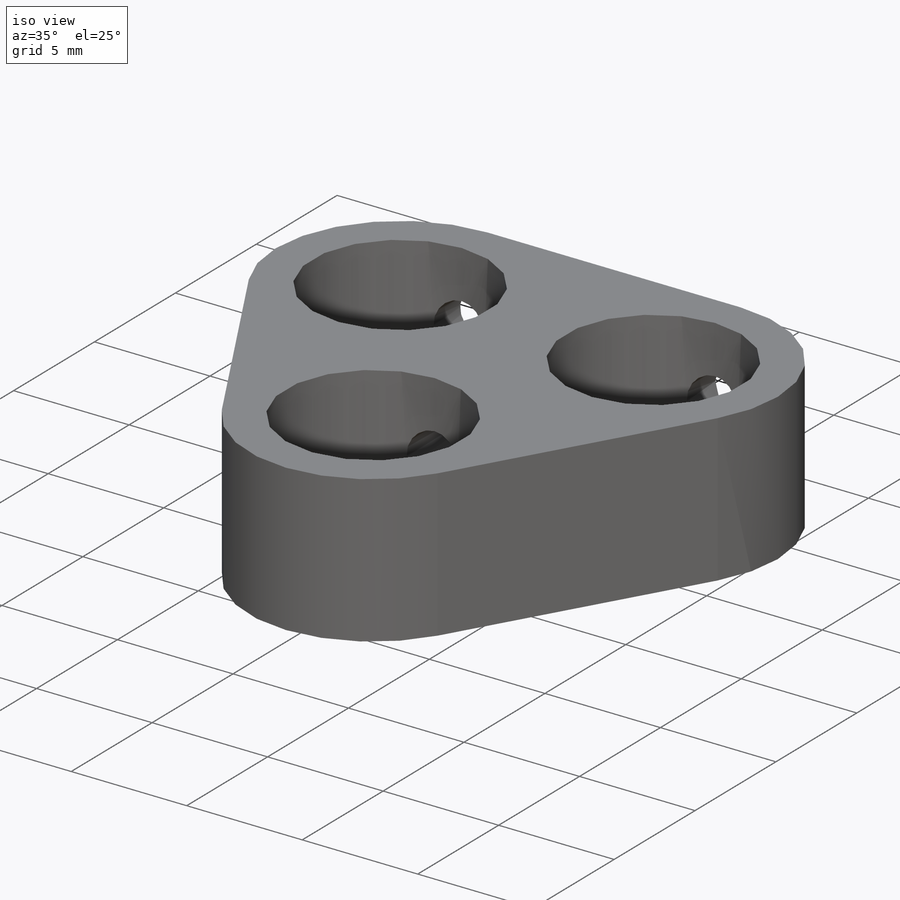
[diagram: iso view]
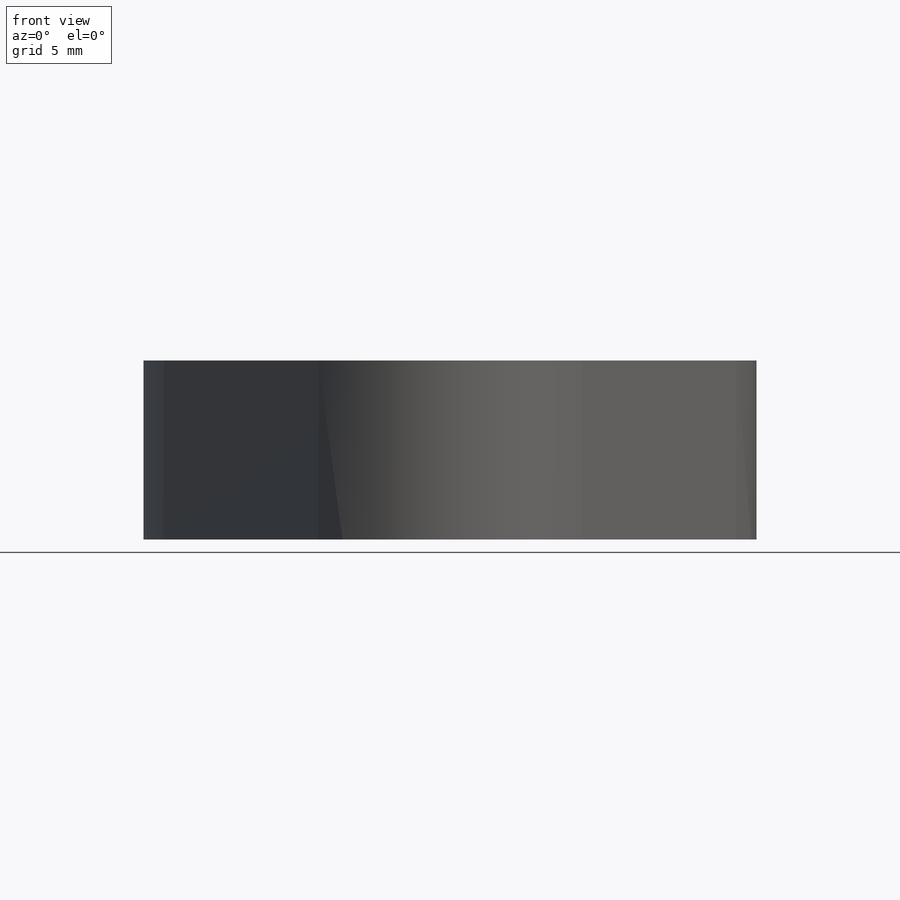
[diagram: front view]
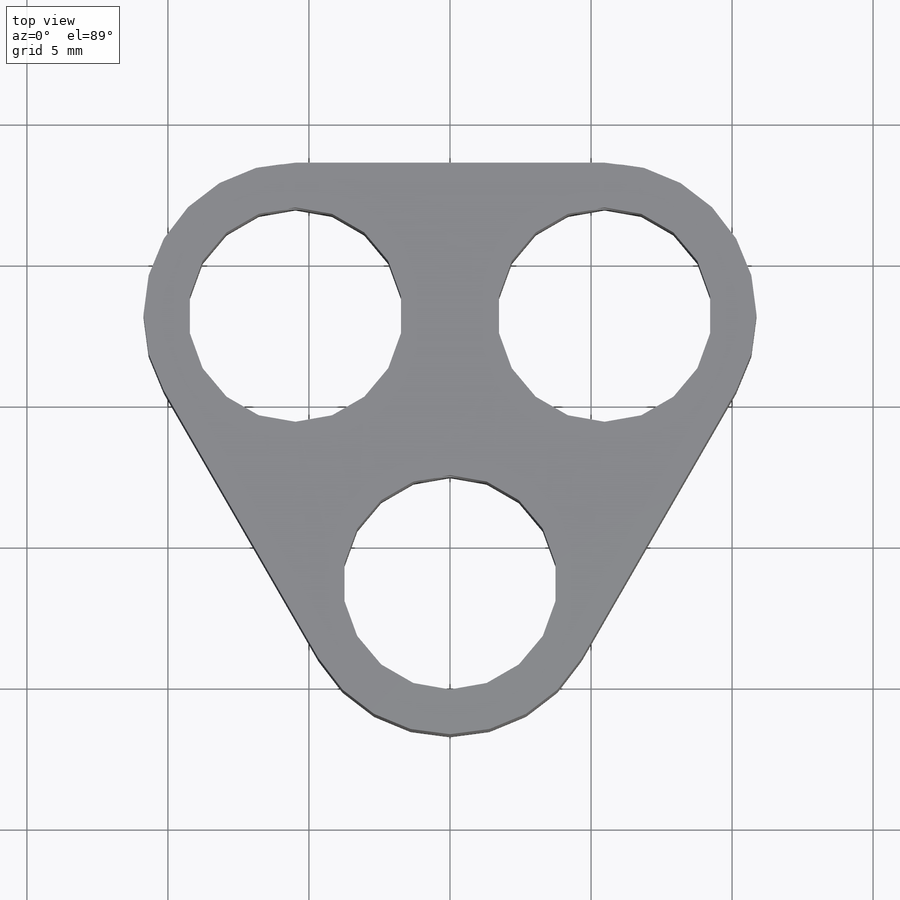
[diagram: top view]
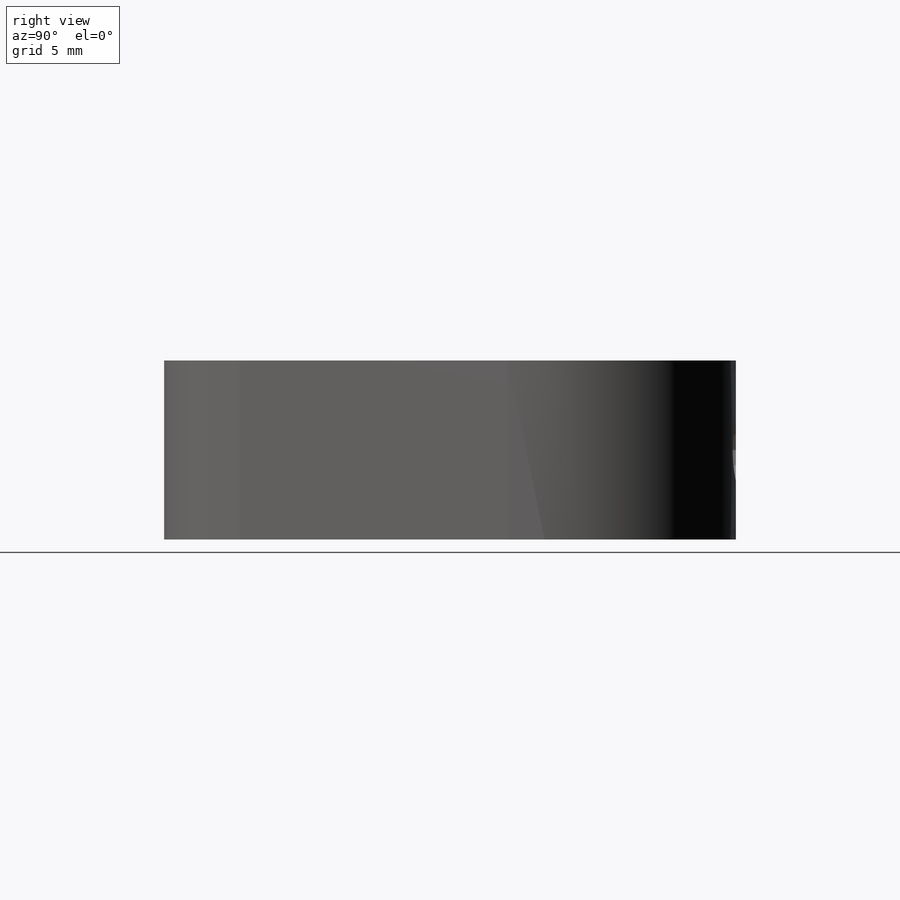
[diagram: right view]
SOLIDWORKS PART (.sldprt)
format: sldprt  version: not decoded by parser v0  size: 218,112 bytes
history: native  units: mm
features: sketch x6, hole x2, material x1, extrude x1, cut_extrude x1 (+11 scaffold rows collapsed)
feature tree (22):
  scaffold x11  (default folders/planes/origin — collapsed)
  material  "Chrome Stainless Steel"
  sketch  "Sketch1"
  extrude  "Extrude1"  Depth=6.35mm
  sketch  "Sketch2"  dims[c1.D1=~3.907773mm c1.D5=5.3875mm c1.D6=5.3875mm c2.D5=5.3875mm c2.D6=5.3875mm c2.D7=5.3875mm c2.D1=10.962mm c2.D2=10.962mm c2.D3=10.962mm c2.D4=5.481mm c2.D8=60.0deg c3.D4=5.481mm]
  cut_extrude  "Cut-Extrude1"  Depth=6.35mm
  hole  "#2-56 Tapped Hole1"  Diameter=1.778mm Depth=5.588mm
  sketch  "3DSketch1"  dims[c1.D1=~3.352426mm c1.D2=3.175mm c2.D2=~3.250411mm c2.D4=3.175mm c2.D3=~2.89328mm c3.D4=3.175mm c3.D3=3.175mm c3.D1=3.175mm c4.D4=~6.279942mm c4.D1=3.175mm c5.D4=3.175mm c5.D2=~5.22651mm c5.D1=~5.480939mm c5.D3=10.962mm c6.D1=10.962mm]
  sketch  "Sketch4"  dims[hole-wizard template sketch: 34 standard entries collapsed; hole parameters above]
  hole  "#2-56 Tapped Hole2"  Diameter=1.778mm Depth=13.208mm
  sketch  "3DSketch2"  dims[c1.D1=~3.185738mm c1.D2=3.175mm c2.D1=3.175mm]
  sketch  "Sketch5"  dims[hole-wizard template sketch: 29 standard entries collapsed; hole parameters kept: c8.Tap Drill Depth=13.208mm c8.Thread Major Dia.=2.1844mm c8.Thread Depth=11.938mm c8.D5=~14.816244mm c8.Drill Angle=118.0deg]
decode coverage: 9 of 10 modeling features carry decoded parameters
note: ~ marks probable driven/reference dimensions
note: suppression state not decoded; provenance and decode notes live in map.json
